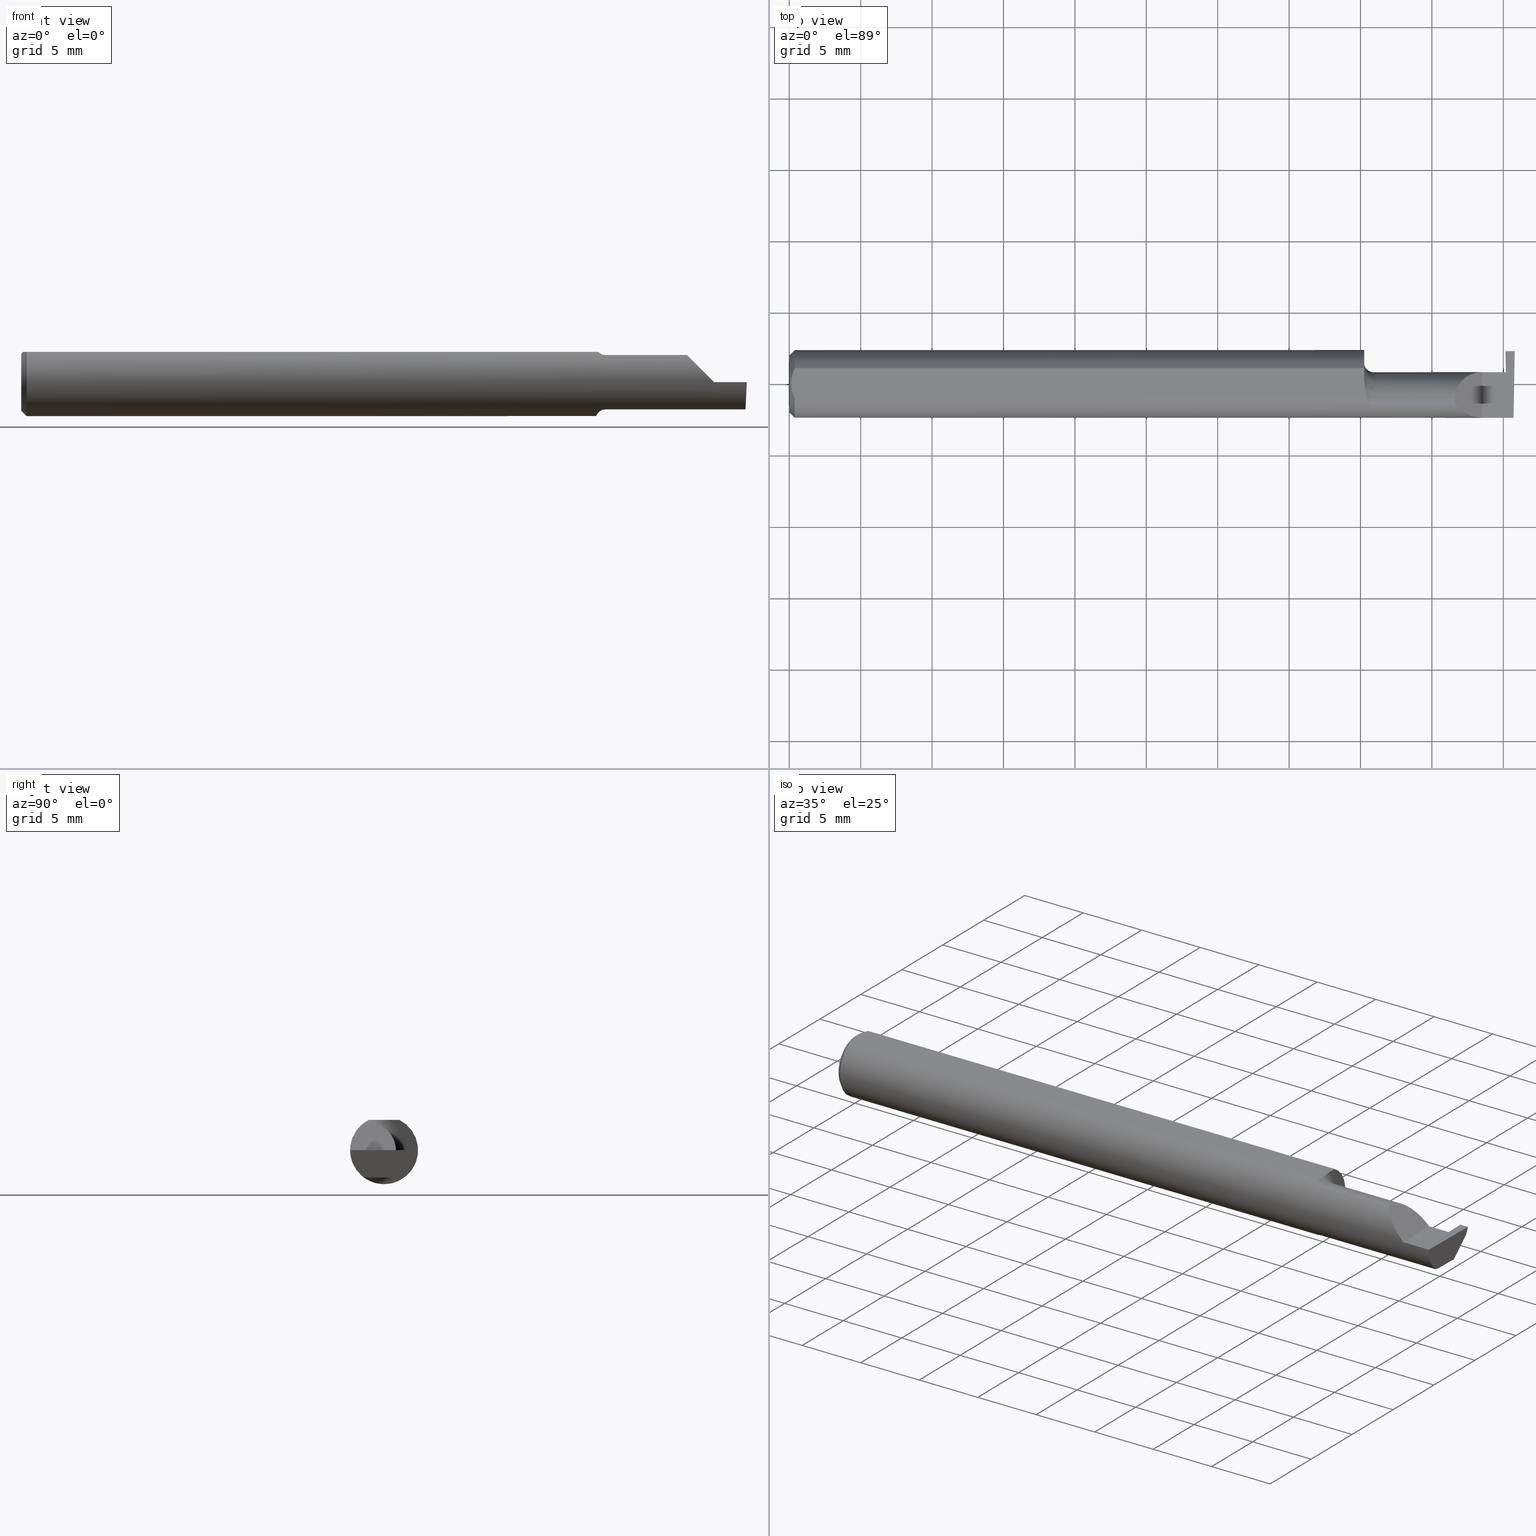
[diagram: canonical four-view strip — front | top / right | iso, engineering-drawing reading convention]
A machine part, canonical four-view strip (front | top / right | iso — engineering-drawing reading convention). The complete STEP part file that produces these views, byte-faithful:
ISO-10303-21;
HEADER;
FILE_DESCRIPTION (( 'STEP AP203' ),
    '1' );
FILE_NAME ('220659-GT025K-6.STEP',
    '2024-07-08T22:54:24',
    ( '' ),
    ( '' ),
    'SwSTEP 2.0',
    'SolidWorks 2024',
    '' );
FILE_SCHEMA (( 'CONFIG_CONTROL_DESIGN' ));
ENDSEC;

DATA;
#1 = FACE_OUTER_BOUND ( 'NONE', #619, .T. ) ;
#2 = ORIENTED_EDGE ( 'NONE', *, *, #495, .T. ) ;
#3 = CALENDAR_DATE ( 2024, 8, 7 ) ;
#4 = CARTESIAN_POINT ( 'NONE',  ( 1.591356684838558300, -0.04259999999999997122, -0.08334386600104412568 ) ) ;
#5 = CARTESIAN_POINT ( 'NONE',  ( 1.977080687037212847, 0.02094495418688679597, -0.05333678008583642161 ) ) ;
#6 = ORIENTED_EDGE ( 'NONE', *, *, #571, .T. ) ;
#7 = PERSON_AND_ORGANIZATION_ROLE ( 'creator' ) ;
#8 = AXIS2_PLACEMENT_3D ( 'NONE', #651, #465, #709 ) ;
#9 = DIRECTION ( 'NONE',  ( 0.000000000000000000, 0.000000000000000000, 1.000000000000000000 ) ) ;
#10 = LOCAL_TIME ( 15, 54, 24.00000000000000000, #476 ) ;
#11 = CARTESIAN_POINT ( 'NONE',  ( 0.000000000000000000, 0.000000000000000000, 0.000000000000000000 ) ) ;
#12 = ORIENTED_EDGE ( 'NONE', *, *, #13, .T. ) ;
#13 = EDGE_CURVE ( 'NONE', #521, #623, #548, .T. ) ;
#14 = CARTESIAN_POINT ( 'NONE',  ( 2.000000000000000000, -0.04259999999999999204, -0.07499999999999998335 ) ) ;
#15 = DIRECTION ( 'NONE',  ( 1.000000000000000000, 0.000000000000000000, 0.000000000000000000 ) ) ;
#16 = ORIENTED_EDGE ( 'NONE', *, *, #22, .T. ) ;
#17 = PLANE ( 'NONE',  #139 ) ;
#18 = CARTESIAN_POINT ( 'NONE',  ( 1.584999999999999964, -0.04259999999999998510, 0.000000000000000000 ) ) ;
#19 = PRODUCT_RELATED_PRODUCT_CATEGORY ( 'detail', '', ( #721 ) ) ;
#20 = VECTOR ( 'NONE', #314, 39.37007874015748143 ) ;
#21 = AXIS2_PLACEMENT_3D ( 'NONE', #364, #190, #424 ) ;
#22 = EDGE_CURVE ( 'NONE', #267, #262, #259, .T. ) ;
#23 = APPROVAL_PERSON_ORGANIZATION ( #600, #304, #596 ) ;
#24 = DIRECTION ( 'NONE',  ( -0.03056411404777942264, -0.3418603543644915255, -0.9392536042231929283 ) ) ;
#25 = ORIENTED_EDGE ( 'NONE', *, *, #728, .F. ) ;
#26 = EDGE_CURVE ( 'NONE', #427, #749, #684, .T. ) ;
#27 = CARTESIAN_POINT ( 'NONE',  ( 1.835000000000000409, -0.04259999999999998510, 0.07499999999999999722 ) ) ;
#28 = DIRECTION ( 'NONE',  ( -1.000000000000000000, -0.000000000000000000, -0.000000000000000000 ) ) ;
#29 = EDGE_LOOP ( 'NONE', ( #235, #99, #688, #12, #766, #704 ) ) ;
#30 = CARTESIAN_POINT ( 'NONE',  ( 1.589570820222980130, -0.02392027542784326555, 0.08360000000000000764 ) ) ;
#31 = DESIGN_CONTEXT ( 'detailed design', #310, 'design' ) ;
#32 = DIRECTION ( 'NONE',  ( 0.000000000000000000, 0.000000000000000000, 1.000000000000000000 ) ) ;
#33 = VERTEX_POINT ( 'NONE', #618 ) ;
#34 = FACE_OUTER_BOUND ( 'NONE', #575, .T. ) ;
#35 = AXIS2_PLACEMENT_3D ( 'NONE', #666, #439, #62 ) ;
#36 = CARTESIAN_POINT ( 'NONE',  ( 1.975284083932825618, -1.943777437782025386, -0.02023551779233938308 ) ) ;
#37 = ORIENTED_EDGE ( 'NONE', *, *, #728, .T. ) ;
#38 = EDGE_CURVE ( 'NONE', #534, #451, #109, .T. ) ;
#39 = CARTESIAN_POINT ( 'NONE',  ( 1.995486889784650497, -0.05810704225352112534, -0.07337936794867826185 ) ) ;
#40 = ORIENTED_EDGE ( 'NONE', *, *, #128, .F. ) ;
#41 = MECHANICAL_CONTEXT ( 'NONE', #173, 'mechanical' ) ;
#42 = CARTESIAN_POINT ( 'NONE',  ( 0.005981829149300634495, 0.01454044632356570055, 0.08359999999999997988 ) ) ;
#43 = VERTEX_POINT ( 'NONE', #320 ) ;
#44 = B_SPLINE_CURVE_WITH_KNOTS ( 'NONE', 3,
 ( #715, #348, #342, #42, #405, #408 ),
 .UNSPECIFIED., .F., .F.,
 ( 4, 2, 4 ),
 ( 0.001518921481343302573, 0.002066509374312902950, 0.002614097267282503544 ),
 .UNSPECIFIED. ) ;
#45 = B_SPLINE_CURVE_WITH_KNOTS ( 'NONE', 3,
 ( #335, #569, #30, #699, #272, #512 ),
 .UNSPECIFIED., .F., .F.,
 ( 4, 2, 4 ),
 ( 0.009672910729349781800, 0.01035804079918456987, 0.01104317086901935793 ),
 .UNSPECIFIED. ) ;
#46 = DIRECTION ( 'NONE',  ( 0.000000000000000000, -0.7071067811865487940, -0.7071067811865462405 ) ) ;
#47 = CARTESIAN_POINT ( 'NONE',  ( 0.01499999999999999944, -0.04209513035969836975, 0.08359999999999999376 ) ) ;
#48 = EDGE_CURVE ( 'NONE', #406, #508, #726, .T. ) ;
#49 = CIRCLE ( 'NONE', #327, 0.07499999999999999722 ) ;
#50 = VERTEX_POINT ( 'NONE', #256 ) ;
#51 = AXIS2_PLACEMENT_3D ( 'NONE', #52, #581, #292 ) ;
#52 = CARTESIAN_POINT ( 'NONE',  ( 0.000000000000000000, 0.000000000000000000, 0.000000000000000000 ) ) ;
#53 = EDGE_CURVE ( 'NONE', #93, #147, #95, .T. ) ;
#54 = ORIENTED_EDGE ( 'NONE', *, *, #311, .F. ) ;
#55 = LINE ( 'NONE', #585, #352 ) ;
#56 = DIRECTION ( 'NONE',  ( -0.01744642479411312799, -0.9998477995484629233, 3.463134274570152404E-16 ) ) ;
#57 = VERTEX_POINT ( 'NONE', #558 ) ;
#58 = CARTESIAN_POINT ( 'NONE',  ( 0.000000000000000000, 0.000000000000000000, 0.000000000000000000 ) ) ;
#59 = DIRECTION ( 'NONE',  ( 1.000000000000000000, -0.000000000000000000, -0.000000000000000000 ) ) ;
#60 = AXIS2_PLACEMENT_3D ( 'NONE', #675, #244, #129 ) ;
#61 = FACE_OUTER_BOUND ( 'NONE', #448, .T. ) ;
#62 = DIRECTION ( 'NONE',  ( 1.000000000000000000, 0.000000000000000000, -0.000000000000000000 ) ) ;
#63 = CARTESIAN_POINT ( 'NONE',  ( 1.605389671955115727, -0.05750350940205799927, -0.07386306649500064270 ) ) ;
#64 = CARTESIAN_POINT ( 'NONE',  ( 0.000000000000000000, 0.04209513035969836975, 0.08359999999999999376 ) ) ;
#65 = APPROVAL_DATE_TIME ( #611, #222 ) ;
#66 = CARTESIAN_POINT ( 'NONE',  ( 1.599728336617688651, -0.05428341532129050961, -0.07627162539867091140 ) ) ;
#67 = EDGE_CURVE ( 'NONE', #663, #93, #672, .T. ) ;
#68 = FACE_OUTER_BOUND ( 'NONE', #240, .T. ) ;
#69 = CIRCLE ( 'NONE', #206, 0.07499999999999999722 ) ;
#70 = CARTESIAN_POINT ( 'NONE',  ( 1.792249999999999899, -0.05810704225352112534, -0.07337936794867826185 ) ) ;
#71 = DIRECTION ( 'NONE',  ( -1.000000000000000000, -0.000000000000000000, -0.000000000000000000 ) ) ;
#72 = ORIENTED_EDGE ( 'NONE', *, *, #250, .T. ) ;
#73 = CARTESIAN_POINT ( 'NONE',  ( 1.609999999999999654, -0.05810704225352114616, 0.07337936794867824797 ) ) ;
#74 = CC_DESIGN_PERSON_AND_ORGANIZATION_ASSIGNMENT ( #368, #7, ( #733 ) ) ;
#75 = DIRECTION ( 'NONE',  ( -1.000000000000000000, -0.000000000000000000, -0.000000000000000000 ) ) ;
#76 = ORIENTED_EDGE ( 'NONE', *, *, #250, .F. ) ;
#77 = EDGE_CURVE ( 'NONE', #614, #291, #303, .T. ) ;
#78 = FACE_OUTER_BOUND ( 'NONE', #326, .T. ) ;
#79 = CARTESIAN_POINT ( 'NONE',  ( 1.607655343791670077, -0.05810704225352127106, 0.07337936794867813695 ) ) ;
#80 = ORIENTED_EDGE ( 'NONE', *, *, #714, .F. ) ;
#81 = EDGE_CURVE ( 'NONE', #116, #427, #134, .T. ) ;
#82 = DIRECTION ( 'NONE',  ( 1.000000000000000000, -0.000000000000000000, -0.000000000000000000 ) ) ;
#83 = AXIS2_PLACEMENT_3D ( 'NONE', #145, #265, #150 ) ;
#84 = LOCAL_TIME ( 15, 54, 24.00000000000000000, #312 ) ;
#85 = FACE_OUTER_BOUND ( 'NONE', #479, .T. ) ;
#86 = ORIENTED_EDGE ( 'NONE', *, *, #752, .T. ) ;
#87 = FACE_OUTER_BOUND ( 'NONE', #337, .T. ) ;
#88 = DIRECTION ( 'NONE',  ( -0.7071067811865490160, 0.000000000000000000, -0.7071067811865460184 ) ) ;
#89 = ORIENTED_EDGE ( 'NONE', *, *, #752, .F. ) ;
#90 = CARTESIAN_POINT ( 'NONE',  ( 1.836620632051322310, -0.05810704225352113922, 0.07337936794867826185 ) ) ;
#91 = PLANE ( 'NONE',  #328 ) ;
#92 = ADVANCED_FACE ( 'NONE', ( #68 ), #643, .T. ) ;
#93 = VERTEX_POINT ( 'NONE', #603 ) ;
#94 = DIRECTION ( 'NONE',  ( -0.03489418134011375294, -0.0006090802009084599154, 0.9993908270190957621 ) ) ;
#95 = CIRCLE ( 'NONE', #120, 0.07499999999999999722 ) ;
#96 = EDGE_CURVE ( 'NONE', #147, #413, #49, .T. ) ;
#97 = CARTESIAN_POINT ( 'NONE',  ( 1.910000000000000142, -0.09359999999999998876, 1.102182119232621301E-17 ) ) ;
#98 = VECTOR ( 'NONE', #473, 39.37007874015748143 ) ;
#99 = ORIENTED_EDGE ( 'NONE', *, *, #673, .T. ) ;
#100 = CARTESIAN_POINT ( 'NONE',  ( 1.899999999999999911, 0.08348456554894213844, -0.01900000000000000300 ) ) ;
#101 = FACE_OUTER_BOUND ( 'NONE', #630, .T. ) ;
#102 = ORIENTED_EDGE ( 'NONE', *, *, #571, .F. ) ;
#103 = ADVANCED_FACE ( 'NONE', ( #676 ), #130, .T. ) ;
#104 = CARTESIAN_POINT ( 'NONE',  ( 1.977956086143509484, 0.03244268712522728471, -0.07004187842361092597 ) ) ;
#105 = LINE ( 'NONE', #712, #98 ) ;
#106 = ORIENTED_EDGE ( 'NONE', *, *, #387, .F. ) ;
#107 = ADVANCED_FACE ( 'NONE', ( #373 ), #308, .T. ) ;
#108 = LINE ( 'NONE', #586, #503 ) ;
#109 =( BOUNDED_CURVE ( )  B_SPLINE_CURVE ( 3, ( #426, #248, #5, #252 ),
 .UNSPECIFIED., .F., .F. ) 
 B_SPLINE_CURVE_WITH_KNOTS ( ( 4, 4 ),
 ( 3.140983202202990654, 4.455205321888860759 ),
 .UNSPECIFIED. ) 
 CURVE ( )  GEOMETRIC_REPRESENTATION_ITEM ( )  RATIONAL_B_SPLINE_CURVE ( ( 1.000000000000000000, 0.8611734602017915297, 0.8611734602017915297, 1.000000000000000000 ) ) 
 REPRESENTATION_ITEM ( '' )  );
#110 = ORIENTED_EDGE ( 'NONE', *, *, #298, .T. ) ;
#111 = VECTOR ( 'NONE', #657, 39.37007874015748143 ) ;
#112 = CARTESIAN_POINT ( 'NONE',  ( 1.880893035518783396, -0.09359999999999998876, 0.02910696448121675300 ) ) ;
#113 = CARTESIAN_POINT ( 'NONE',  ( 0.005975039161239314132, -0.01453776427033151748, 0.08360000000000000764 ) ) ;
#114 = ORIENTED_EDGE ( 'NONE', *, *, #410, .F. ) ;
#115 = DIRECTION ( 'NONE',  ( -1.000000000000000000, -0.000000000000000000, -0.000000000000000000 ) ) ;
#116 = VERTEX_POINT ( 'NONE', #554 ) ;
#117 = B_SPLINE_CURVE_WITH_KNOTS ( 'NONE', 3,
 ( #369, #181, #63, #616, #66, #307, #539, #4 ),
 .UNSPECIFIED., .F., .F.,
 ( 4, 2, 2, 4 ),
 ( 1.968126669309311202E-07, 0.0001761966947278539039, 0.0003521965767887768836, 0.0007041963409106363411 ),
 .UNSPECIFIED. ) ;
#118 = CALENDAR_DATE ( 2024, 8, 7 ) ;
#119 = FACE_OUTER_BOUND ( 'NONE', #711, .T. ) ;
#120 = AXIS2_PLACEMENT_3D ( 'NONE', #481, #488, #421 ) ;
#121 = ORIENTED_EDGE ( 'NONE', *, *, #595, .T. ) ;
#122 = CIRCLE ( 'NONE', #564, 0.02500000000000007425 ) ;
#123 =( GEOMETRIC_REPRESENTATION_CONTEXT ( 3 ) GLOBAL_UNCERTAINTY_ASSIGNED_CONTEXT ( ( #700 ) ) GLOBAL_UNIT_ASSIGNED_CONTEXT ( ( #527, #223, #641 ) ) REPRESENTATION_CONTEXT ( 'NONE', 'WORKASPACE' ) );
#124 = CALENDAR_DATE ( 2024, 8, 7 ) ;
#125 = DIRECTION ( 'NONE',  ( -1.000000000000000000, -0.000000000000000000, -0.000000000000000000 ) ) ;
#126 = DIRECTION ( 'NONE',  ( 0.04124162102275089753, 0.0006089328293546878617, -0.9991490168619618917 ) ) ;
#127 = ORIENTED_EDGE ( 'NONE', *, *, #774, .F. ) ;
#128 = EDGE_CURVE ( 'NONE', #154, #614, #475, .T. ) ;
#129 = DIRECTION ( 'NONE',  ( 0.000000000000000000, 0.0006094513490878761220, -0.9999998142845092364 ) ) ;
#130 = PLANE ( 'NONE',  #35 ) ;
#131 = ORIENTED_EDGE ( 'NONE', *, *, #739, .T. ) ;
#132 = APPROVAL_DATE_TIME ( #195, #138 ) ;
#133 = DIRECTION ( 'NONE',  ( 0.9986309243930281410, -3.188005489064582067E-05, 0.05230942390801322089 ) ) ;
#134 = LINE ( 'NONE', #734, #695 ) ;
#135 = B_SPLINE_CURVE_WITH_KNOTS ( 'NONE', 3,
 ( #691, #213, #687, #450 ),
 .UNSPECIFIED., .F., .F.,
 ( 4, 4 ),
 ( 4.741820243502701581E-07, 1.584523690453573094E-05 ),
 .UNSPECIFIED. ) ;
#136 = ORIENTED_EDGE ( 'NONE', *, *, #96, .F. ) ;
#137 = CONICAL_SURFACE ( 'NONE', #778, 0.09359999999999998876, 0.7853981633974473908 ) ;
#138 = APPROVAL ( #783, 'UNSPECIFIED' ) ;
#139 = AXIS2_PLACEMENT_3D ( 'NONE', #627, #260, #207 ) ;
#140 = CARTESIAN_POINT ( 'NONE',  ( 1.584999999999999964, 0.03240000000000000518, 5.082284216461540301E-17 ) ) ;
#141 = VERTEX_POINT ( 'NONE', #541 ) ;
#142 = CARTESIAN_POINT ( 'NONE',  ( 1.835000000000000409, -0.04259999999999998510, 0.07499999999999999722 ) ) ;
#143 = CARTESIAN_POINT ( 'NONE',  ( 1.593098441794897902, -0.04641417426599063478, 0.08139430652501544738 ) ) ;
#144 = ORIENTED_EDGE ( 'NONE', *, *, #48, .F. ) ;
#145 = CARTESIAN_POINT ( 'NONE',  ( 2.000000000000000000, 0.05599964285600403380, -0.07500000000000002498 ) ) ;
#146 = DIRECTION ( 'NONE',  ( -7.219510806010324627E-16, 0.9999998142845092364, 0.0006094513490878470654 ) ) ;
#147 = VERTEX_POINT ( 'NONE', #494 ) ;
#148 = AXIS2_PLACEMENT_3D ( 'NONE', #36, #701, #703 ) ;
#149 = B_SPLINE_CURVE_WITH_KNOTS ( 'NONE', 3,
 ( #313, #679, #185, #316, #552, #662 ),
 .UNSPECIFIED., .F., .F.,
 ( 4, 2, 4 ),
 ( 0.0007041963409106363411, 0.001193146413573859584, 0.001682096486237082827 ),
 .UNSPECIFIED. ) ;
#150 = DIRECTION ( 'NONE',  ( 0.000000000000000000, -1.000000000000000000, 3.463308682636258767E-16 ) ) ;
#151 = AXIS2_PLACEMENT_3D ( 'NONE', #324, #566, #561 ) ;
#152 = CC_DESIGN_SECURITY_CLASSIFICATION ( #393, ( #733 ) ) ;
#153 = CARTESIAN_POINT ( 'NONE',  ( 1.591356684838558300, -0.04259999999999997816, 0.08334386600104415344 ) ) ;
#154 = VERTEX_POINT ( 'NONE', #782 ) ;
#155 = LINE ( 'NONE', #449, #487 ) ;
#156 = ADVANCED_FACE ( 'NONE', ( #119 ), #366, .T. ) ;
#157 = CARTESIAN_POINT ( 'NONE',  ( 1.595259025420518784, -0.04992838138009422083, 0.07925011723318650669 ) ) ;
#158 = ORIENTED_EDGE ( 'NONE', *, *, #524, .F. ) ;
#159 = LINE ( 'NONE', #519, #253 ) ;
#160 = CARTESIAN_POINT ( 'NONE',  ( 1.975284083932825618, -1.943777437782025386, -0.02023551779233938308 ) ) ;
#161 = ORIENTED_EDGE ( 'NONE', *, *, #96, .T. ) ;
#162 = FACE_OUTER_BOUND ( 'NONE', #716, .T. ) ;
#163 = AXIS2_PLACEMENT_3D ( 'NONE', #567, #457, #325 ) ;
#164 = CARTESIAN_POINT ( 'NONE',  ( 0.004999999999999977553, -0.007328888879231072045, 0.08359999999999997988 ) ) ;
#165 = VECTOR ( 'NONE', #573, 39.37007874015748143 ) ;
#166 = ORIENTED_EDGE ( 'NONE', *, *, #67, .F. ) ;
#167 = ADVANCED_FACE ( 'NONE', ( #218 ), #137, .T. ) ;
#168 = DIRECTION ( 'NONE',  ( 0.000000000000000000, -0.7071067811865462405, 0.7071067811865487940 ) ) ;
#169 = CARTESIAN_POINT ( 'NONE',  ( 1.609999999999999654, -0.05810704225352111146, -0.07337936794867826185 ) ) ;
#170 = ADVANCED_FACE ( 'NONE', ( #763 ), #625, .T. ) ;
#171 = ORIENTED_EDGE ( 'NONE', *, *, #38, .T. ) ;
#172 = DIRECTION ( 'NONE',  ( 0.000000000000000000, 0.000000000000000000, 1.000000000000000000 ) ) ;
#173 = APPLICATION_CONTEXT ( 'configuration controlled 3d designs of mechanical parts and assemblies' ) ;
#174 = DIRECTION ( 'NONE',  ( 0.000000000000000000, 0.000000000000000000, 1.000000000000000000 ) ) ;
#175 = VERTEX_POINT ( 'NONE', #266 ) ;
#176 = CARTESIAN_POINT ( 'NONE',  ( 1.975181069320712801, 0.08545240048792480947, -0.01703216506101733196 ) ) ;
#177 = CARTESIAN_POINT ( 'NONE',  ( 0.000000000000000000, 0.000000000000000000, 0.000000000000000000 ) ) ;
#178 = ORIENTED_EDGE ( 'NONE', *, *, #182, .F. ) ;
#179 = PERSON_AND_ORGANIZATION ( #620, #329 ) ;
#180 = PRODUCT_DEFINITION_SHAPE ( 'NONE', 'NONE',  #360 ) ;
#181 = CARTESIAN_POINT ( 'NONE',  ( 1.607653034764491506, -0.05810704225352129881, -0.07337936794867812307 ) ) ;
#182 = EDGE_CURVE ( 'NONE', #451, #427, #748, .T. ) ;
#183 = EDGE_LOOP ( 'NONE', ( #16, #514, #294, #399 ) ) ;
#184 = COORDINATED_UNIVERSAL_TIME_OFFSET ( 8, 0, .BEHIND. ) ;
#185 = CARTESIAN_POINT ( 'NONE',  ( 1.587415450430337271, -0.03151229630690470518, -0.08835846806355296401 ) ) ;
#186 = DIRECTION ( 'NONE',  ( -0.000000000000000000, 1.000000000000000000, -0.000000000000000000 ) ) ;
#187 = ORIENTED_EDGE ( 'NONE', *, *, #215, .T. ) ;
#188 = ADVANCED_BREP_SHAPE_REPRESENTATION ( '220659-GT025K-6', ( #278, #51 ), #123 ) ;
#189 = SECURITY_CLASSIFICATION_LEVEL ( 'unclassified' ) ;
#190 = DIRECTION ( 'NONE',  ( -1.000000000000000000, -0.000000000000000000, -0.000000000000000000 ) ) ;
#191 = ORIENTED_EDGE ( 'NONE', *, *, #610, .F. ) ;
#192 = CIRCLE ( 'NONE', #290, 0.02500000000000007425 ) ;
#193 = ADVANCED_FACE ( 'NONE', ( #85 ), #391, .F. ) ;
#194 = LOCAL_TIME ( 15, 54, 24.00000000000000000, #300 ) ;
#195 = DATE_AND_TIME ( #723, #671 ) ;
#196 = CARTESIAN_POINT ( 'NONE',  ( 1.584999999999999964, -0.04259999999999997816, -0.07499999999999999722 ) ) ;
#197 = CARTESIAN_POINT ( 'NONE',  ( 0.01499999999999999944, 0.000000000000000000, 0.000000000000000000 ) ) ;
#198 = ADVANCED_FACE ( 'NONE', ( #220 ), #442, .F. ) ;
#199 = ORIENTED_EDGE ( 'NONE', *, *, #353, .T. ) ;
#200 = DATE_AND_TIME ( #3, #555 ) ;
#201 = PLANE ( 'NONE',  #60 ) ;
#202 = CARTESIAN_POINT ( 'NONE',  ( 1.609999999999999654, -0.04259999999999998510, 0.000000000000000000 ) ) ;
#203 = ORIENTED_EDGE ( 'NONE', *, *, #725, .F. ) ;
#204 = CARTESIAN_POINT ( 'NONE',  ( 1.591129652885479029, -0.04209513035970094408, 0.08359999999999999376 ) ) ;
#205 = DIRECTION ( 'NONE',  ( -1.000000000000000000, -0.000000000000000000, -0.000000000000000000 ) ) ;
#206 = AXIS2_PLACEMENT_3D ( 'NONE', #246, #429, #665 ) ;
#207 = DIRECTION ( 'NONE',  ( 0.03490478697967554916, 0.000000000000000000, -0.9993906422645267851 ) ) ;
#208 = CARTESIAN_POINT ( 'NONE',  ( 1.584999999999999964, -0.04259999999999998510, 0.000000000000000000 ) ) ;
#209 = EDGE_LOOP ( 'NONE', ( #565, #634, #178 ) ) ;
#210 = CARTESIAN_POINT ( 'NONE',  ( 1.835000000000000187, 0.001333982822017879596, 0.07499999999999998335 ) ) ;
#211 = VERTEX_POINT ( 'NONE', #622 ) ;
#212 = CARTESIAN_POINT ( 'NONE',  ( 1.899999999999999911, 0.09040000000000000813, -3.918869757271545852E-19 ) ) ;
#213 = CARTESIAN_POINT ( 'NONE',  ( 1.591204482410373933, -0.04226411763296330365, 0.08351490979309549034 ) ) ;
#214 = ORIENTED_EDGE ( 'NONE', *, *, #247, .F. ) ;
#215 = EDGE_CURVE ( 'NONE', #57, #599, #776, .T. ) ;
#216 = DIRECTION ( 'NONE',  ( 0.000000000000000000, -0.3420201433256696566, -0.9396926207859079838 ) ) ;
#217 = AXIS2_PLACEMENT_3D ( 'NONE', #576, #472, #172 ) ;
#218 = FACE_OUTER_BOUND ( 'NONE', #685, .T. ) ;
#219 = ORIENTED_EDGE ( 'NONE', *, *, #491, .T. ) ;
#220 = FACE_OUTER_BOUND ( 'NONE', #777, .T. ) ;
#221 = ORIENTED_EDGE ( 'NONE', *, *, #295, .F. ) ;
#222 = APPROVAL ( #780, 'UNSPECIFIED' ) ;
#223 =( NAMED_UNIT ( * ) PLANE_ANGLE_UNIT ( ) SI_UNIT ( $, .RADIAN. ) );
#224 = DIRECTION ( 'NONE',  ( 3.192376091677297614E-05, 0.9999999994904366085, -3.463312784668718215E-16 ) ) ;
#225 = ORIENTED_EDGE ( 'NONE', *, *, #739, .F. ) ;
#226 = CARTESIAN_POINT ( 'NONE',  ( 1.910000000000000142, -0.09359999999999998876, 1.102182119232621301E-17 ) ) ;
#227 = VECTOR ( 'NONE', #146, 39.37007874015748854 ) ;
#228 = CARTESIAN_POINT ( 'NONE',  ( 1.995547692684114249, -0.05300374992736063551, -0.07445783144524571739 ) ) ;
#229 = AXIS2_PLACEMENT_3D ( 'NONE', #58, #781, #602 ) ;
#230 = ORIENTED_EDGE ( 'NONE', *, *, #356, .F. ) ;
#231 = CARTESIAN_POINT ( 'NONE',  ( 1.591356684838558300, -0.04259999999999997122, -0.08334386600104412568 ) ) ;
#232 = ORIENTED_EDGE ( 'NONE', *, *, #667, .F. ) ;
#233 = CARTESIAN_POINT ( 'NONE',  ( 1.975284083932824064, 0.08348456554894213844, -0.01899999999999999606 ) ) ;
#234 = LINE ( 'NONE', #286, #769 ) ;
#235 = ORIENTED_EDGE ( 'NONE', *, *, #774, .T. ) ;
#236 = ADVANCED_FACE ( 'NONE', ( #513 ), #759, .F. ) ;
#237 = DATE_AND_TIME ( #668, #84 ) ;
#238 = AXIS2_PLACEMENT_3D ( 'NONE', #208, #261, #339 ) ;
#239 = LINE ( 'NONE', #706, #526 ) ;
#240 = EDGE_LOOP ( 'NONE', ( #40, #396, #609, #418, #367 ) ) ;
#241 = VECTOR ( 'NONE', #403, 39.37007874015748854 ) ;
#242 = EDGE_CURVE ( 'NONE', #451, #116, #735, .T. ) ;
#243 = APPROVAL_ROLE ( '' ) ;
#244 = DIRECTION ( 'NONE',  ( -1.322828972456980386E-16, -0.9999998142845093474, -0.0006094513490878762305 ) ) ;
#245 = DIRECTION ( 'NONE',  ( -1.000000000000000000, -0.000000000000000000, -0.000000000000000000 ) ) ;
#246 = CARTESIAN_POINT ( 'NONE',  ( 1.974499999999999922, -0.04259999999999998510, 0.000000000000000000 ) ) ;
#247 = EDGE_CURVE ( 'NONE', #614, #154, #601, .T. ) ;
#248 = CARTESIAN_POINT ( 'NONE',  ( 1.978214534726833840, -0.007134900077140376128, -0.07499999999999999722 ) ) ;
#249 = EDGE_LOOP ( 'NONE', ( #511, #219, #654, #531, #72, #121, #374 ) ) ;
#250 = EDGE_CURVE ( 'NONE', #604, #57, #135, .T. ) ;
#251 = CARTESIAN_POINT ( 'NONE',  ( 1.609999999999999654, -0.04259999999999997816, 0.000000000000000000 ) ) ;
#252 = CARTESIAN_POINT ( 'NONE',  ( 1.975284083932824064, 0.02994487577554239693, -0.01903262984222201318 ) ) ;
#253 = VECTOR ( 'NONE', #705, 39.37007874015748143 ) ;
#254 = PERSON_AND_ORGANIZATION_ROLE ( 'classification_officer' ) ;
#255 = FACE_OUTER_BOUND ( 'NONE', #761, .T. ) ;
#256 = CARTESIAN_POINT ( 'NONE',  ( 1.975510542377208578, 0.03240000000000000518, 1.499546794530320351E-18 ) ) ;
#257 = ORIENTED_EDGE ( 'NONE', *, *, #491, .F. ) ;
#258 = DIRECTION ( 'NONE',  ( -0.000000000000000000, 1.000000000000000000, 1.224646799147353207E-16 ) ) ;
#259 = LINE ( 'NONE', #680, #276 ) ;
#260 = DIRECTION ( 'NONE',  ( 0.9992391710281357531, 0.01740988840156643819, 0.03489949668475364475 ) ) ;
#261 = DIRECTION ( 'NONE',  ( -1.000000000000000000, -0.000000000000000000, -0.000000000000000000 ) ) ;
#262 = VERTEX_POINT ( 'NONE', #696 ) ;
#263 = TOROIDAL_SURFACE ( 'NONE', #747, 0.09999999999999999167, 0.02500000000000007425 ) ;
#264 = CC_DESIGN_APPROVAL ( #304, ( #393 ) ) ;
#265 = DIRECTION ( 'NONE',  ( -0.000000000000000000, 3.463308682636258767E-16, 1.000000000000000000 ) ) ;
#266 = CARTESIAN_POINT ( 'NONE',  ( 1.836620632051322310, -0.05810704225352113922, 0.07337936794867826185 ) ) ;
#267 = VERTEX_POINT ( 'NONE', #323 ) ;
#268 = CARTESIAN_POINT ( 'NONE',  ( 1.835542168554754827, -0.05300374992736064245, 0.07445783144524570352 ) ) ;
#269 = CARTESIAN_POINT ( 'NONE',  ( 1.599746577633803568, -0.05429945193459817521, 0.07626038032150797563 ) ) ;
#270 = EDGE_CURVE ( 'NONE', #262, #681, #638, .T. ) ;
#271 = ORIENTED_EDGE ( 'NONE', *, *, #693, .T. ) ;
#272 = CARTESIAN_POINT ( 'NONE',  ( 1.584999999999999520, 0.003280657920457031966, 0.08359999999999999376 ) ) ;
#273 = ADVANCED_FACE ( 'NONE', ( #395 ), #91, .F. ) ;
#274 = CARTESIAN_POINT ( 'NONE',  ( 1.975027797685394937, 0.03157410243558826657, -0.01282266061343004249 ) ) ;
#275 = ORIENTED_EDGE ( 'NONE', *, *, #456, .T. ) ;
#276 = VECTOR ( 'NONE', #59, 39.37007874015748143 ) ;
#277 = PLANE ( 'NONE',  #83 ) ;
#278 = MANIFOLD_SOLID_BREP ( 'Front Angle', #438 ) ;
#279 = CC_DESIGN_PERSON_AND_ORGANIZATION_ASSIGNMENT ( #542, #678, ( #733 ) ) ;
#280 = ORIENTED_EDGE ( 'NONE', *, *, #606, .F. ) ;
#281 = APPLICATION_PROTOCOL_DEFINITION ( 'international standard', 'config_control_design', 1994, #173 ) ;
#282 = DIRECTION ( 'NONE',  ( 1.000000000000000000, 0.000000000000000000, 0.000000000000000000 ) ) ;
#283 = ORIENTED_EDGE ( 'NONE', *, *, #26, .F. ) ;
#284 =( BOUNDED_CURVE ( )  B_SPLINE_CURVE ( 3, ( #522, #772, #460, #407 ),
 .UNSPECIFIED., .F., .F. ) 
 B_SPLINE_CURVE_WITH_KNOTS ( ( 4, 4 ),
 ( 0.08204942185700578317, 0.9826237902196912621 ),
 .UNSPECIFIED. ) 
 CURVE ( )  GEOMETRIC_REPRESENTATION_ITEM ( )  RATIONAL_B_SPLINE_CURVE ( ( 1.000000000000000000, 0.9335481000009943076, 0.9335481000009943076, 1.000000000000000000 ) ) 
 REPRESENTATION_ITEM ( '' )  );
#285 = CARTESIAN_POINT ( 'NONE',  ( 1.854690286057537829, -0.08092595952420826577, 0.05530971394246238237 ) ) ;
#286 = CARTESIAN_POINT ( 'NONE',  ( 1.978216550241089333, 0.05600033826564643213, -0.07500000000000002498 ) ) ;
#287 = ORIENTED_EDGE ( 'NONE', *, *, #321, .F. ) ;
#288 = LINE ( 'NONE', #344, #318 ) ;
#289 = DIRECTION ( 'NONE',  ( 1.000000000000000000, 0.000000000000000000, 0.000000000000000000 ) ) ;
#290 = AXIS2_PLACEMENT_3D ( 'NONE', #381, #453, #686 ) ;
#291 = VERTEX_POINT ( 'NONE', #574 ) ;
#292 = DIRECTION ( 'NONE',  ( 1.000000000000000000, 0.000000000000000000, 0.000000000000000000 ) ) ;
#293 = CARTESIAN_POINT ( 'NONE',  ( 1.792249999999999899, -0.05810704225352112534, 0.07337936794867826185 ) ) ;
#294 = ORIENTED_EDGE ( 'NONE', *, *, #636, .F. ) ;
#295 = EDGE_CURVE ( 'NONE', #647, #521, #404, .T. ) ;
#296 = SHAPE_DEFINITION_REPRESENTATION ( #180, #188 ) ;
#297 = CARTESIAN_POINT ( 'NONE',  ( 0.01499999999999999944, -0.04209513035969836975, 0.08359999999999999376 ) ) ;
#298 = EDGE_CURVE ( 'NONE', #349, #626, #710, .T. ) ;
#299 = ORIENTED_EDGE ( 'NONE', *, *, #436, .F. ) ;
#300 = COORDINATED_UNIVERSAL_TIME_OFFSET ( 8, 0, .BEHIND. ) ;
#301 = AXIS2_PLACEMENT_3D ( 'NONE', #197, #15, #430 ) ;
#302 = DIRECTION ( 'NONE',  ( -1.000000000000000000, -0.000000000000000000, -0.000000000000000000 ) ) ;
#303 = LINE ( 'NONE', #370, #717 ) ;
#304 = APPROVAL ( #664, 'UNSPECIFIED' ) ;
#305 = AXIS2_PLACEMENT_3D ( 'NONE', #177, #289, #577 ) ;
#306 = EDGE_CURVE ( 'NONE', #626, #431, #523, .T. ) ;
#307 = CARTESIAN_POINT ( 'NONE',  ( 1.595264545693809044, -0.04993027844100268037, -0.07924826417278514612 ) ) ;
#308 = PLANE ( 'NONE',  #350 ) ;
#309 = ORIENTED_EDGE ( 'NONE', *, *, #410, .T. ) ;
#310 = APPLICATION_CONTEXT ( 'configuration controlled 3d designs of mechanical parts and assemblies' ) ;
#311 = EDGE_CURVE ( 'NONE', #599, #175, #477, .T. ) ;
#312 = COORDINATED_UNIVERSAL_TIME_OFFSET ( 8, 0, .BEHIND. ) ;
#313 = CARTESIAN_POINT ( 'NONE',  ( 1.591356684838558300, -0.04259999999999997122, -0.08334386600104412568 ) ) ;
#314 = DIRECTION ( 'NONE',  ( 0.05230943362268535013, 0.0006086169641121966277, -0.9986307389317959915 ) ) ;
#315 = ORIENTED_EDGE ( 'NONE', *, *, #247, .T. ) ;
#316 = CARTESIAN_POINT ( 'NONE',  ( 1.585436655799338901, -0.01945041057485635827, -0.09177104786119411051 ) ) ;
#317 = DIRECTION ( 'NONE',  ( 1.000000000000000000, 0.000000000000000000, 0.000000000000000000 ) ) ;
#318 = VECTOR ( 'NONE', #411, 39.37007874015748143 ) ;
#319 = LINE ( 'NONE', #14, #478 ) ;
#320 = CARTESIAN_POINT ( 'NONE',  ( 1.995486889784650497, -0.05810704225352112534, -0.07337936794867826185 ) ) ;
#321 = EDGE_CURVE ( 'NONE', #211, #343, #635, .T. ) ;
#322 = LINE ( 'NONE', #394, #165 ) ;
#323 = CARTESIAN_POINT ( 'NONE',  ( 1.974499999999999922, 0.09040000000000000813, -3.918869757271545852E-19 ) ) ;
#324 = CARTESIAN_POINT ( 'NONE',  ( 1.584999999999999964, -0.04259999999999998510, 0.000000000000000000 ) ) ;
#325 = DIRECTION ( 'NONE',  ( 0.02618093032612054533, 0.000000000000000000, 0.9996572206948034500 ) ) ;
#326 = EDGE_LOOP ( 'NONE', ( #594, #275, #462, #166, #416, #6, #587, #537 ) ) ;
#327 = AXIS2_PLACEMENT_3D ( 'NONE', #202, #608, #378 ) ;
#328 = AXIS2_PLACEMENT_3D ( 'NONE', #633, #88, #336 ) ;
#329 = ORGANIZATION ( 'UNSPECIFIED', 'UNSPECIFIED', '' ) ;
#330 = CYLINDRICAL_SURFACE ( 'NONE', #151, 0.07499999999999999722 ) ;
#331 = EDGE_CURVE ( 'NONE', #623, #211, #44, .T. ) ;
#332 = CARTESIAN_POINT ( 'NONE',  ( 1.609999999999999654, -0.05810704225352114616, 0.07337936794867824797 ) ) ;
#333 = ORIENTED_EDGE ( 'NONE', *, *, #446, .T. ) ;
#334 = EDGE_CURVE ( 'NONE', #141, #521, #108, .T. ) ;
#335 = CARTESIAN_POINT ( 'NONE',  ( 1.591129652885479029, -0.04209513035970094408, 0.08359999999999999376 ) ) ;
#336 = DIRECTION ( 'NONE',  ( -0.7071067811865460184, 0.000000000000000000, 0.7071067811865490160 ) ) ;
#337 = EDGE_LOOP ( 'NONE', ( #230, #757, #131, #496 ) ) ;
#338 = DIRECTION ( 'NONE',  ( -1.224646799147358877E-16, 0.000000000000000000, -1.000000000000000000 ) ) ;
#339 = DIRECTION ( 'NONE',  ( 0.000000000000000000, 0.000000000000000000, 1.000000000000000000 ) ) ;
#340 = VERTEX_POINT ( 'NONE', #770 ) ;
#341 = AXIS2_PLACEMENT_3D ( 'NONE', #690, #338, #441 ) ;
#342 = CARTESIAN_POINT ( 'NONE',  ( 0.009492654797564227878, 0.02859466010166631170, 0.08360000000000000764 ) ) ;
#343 = VERTEX_POINT ( 'NONE', #47 ) ;
#344 = CARTESIAN_POINT ( 'NONE',  ( 0.000000000000000000, -0.04209513035969836975, 0.08359999999999999376 ) ) ;
#345 = PLANE ( 'NONE',  #305 ) ;
#346 = VERTEX_POINT ( 'NONE', #536 ) ;
#347 = PLANE ( 'NONE',  #655 ) ;
#348 = CARTESIAN_POINT ( 'NONE',  ( 0.01203648650249644972, 0.03550565407121128447, 0.08359999999999997988 ) ) ;
#349 = VERTEX_POINT ( 'NONE', #530 ) ;
#350 = AXIS2_PLACEMENT_3D ( 'NONE', #613, #317, #544 ) ;
#351 = LINE ( 'NONE', #461, #683 ) ;
#352 = VECTOR ( 'NONE', #94, 39.37007874015748854 ) ;
#353 = EDGE_CURVE ( 'NONE', #43, #431, #484, .T. ) ;
#354 = VERTEX_POINT ( 'NONE', #231 ) ;
#355 = CARTESIAN_POINT ( 'NONE',  ( 1.836620632051322310, -0.05810704225352113922, 0.07337936794867826185 ) ) ;
#356 = EDGE_CURVE ( 'NONE', #753, #267, #239, .T. ) ;
#357 = CARTESIAN_POINT ( 'NONE',  ( 1.997436282896842386, 0.05604437736224970185, -0.07500000000000002498 ) ) ;
#358 = ORIENTED_EDGE ( 'NONE', *, *, #528, .T. ) ;
#359 = PERSON_AND_ORGANIZATION ( #620, #329 ) ;
#360 = PRODUCT_DEFINITION ( 'UNKNOWN', '', #733, #31 ) ;
#361 = PLANE ( 'NONE',  #379 ) ;
#362 = ORIENTED_EDGE ( 'NONE', *, *, #470, .T. ) ;
#363 = VECTOR ( 'NONE', #245, 39.37007874015748143 ) ;
#364 = CARTESIAN_POINT ( 'NONE',  ( 1.584999999999999520, -0.04259999999999998510, 0.000000000000000000 ) ) ;
#365 = VECTOR ( 'NONE', #24, 39.37007874015748854 ) ;
#366 = CYLINDRICAL_SURFACE ( 'NONE', #238, 0.07499999999999999722 ) ;
#367 = ORIENTED_EDGE ( 'NONE', *, *, #77, .F. ) ;
#368 = PERSON_AND_ORGANIZATION ( #620, #329 ) ;
#369 = CARTESIAN_POINT ( 'NONE',  ( 1.609999999999999654, -0.05810704225352111146, -0.07337936794867826185 ) ) ;
#370 = CARTESIAN_POINT ( 'NONE',  ( 0.01499999999999999944, 0.000000000000000000, -0.09359999999999998876 ) ) ;
#371 = ORIENTED_EDGE ( 'NONE', *, *, #446, .F. ) ;
#372 = DIRECTION ( 'NONE',  ( 0.000000000000000000, 0.000000000000000000, 1.000000000000000000 ) ) ;
#373 = FACE_OUTER_BOUND ( 'NONE', #390, .T. ) ;
#374 = ORIENTED_EDGE ( 'NONE', *, *, #53, .T. ) ;
#375 = COORDINATED_UNIVERSAL_TIME_OFFSET ( 8, 0, .BEHIND. ) ;
#376 = DIRECTION ( 'NONE',  ( -0.03699114979479412729, 0.7066228325057373194, 0.7066228325057346549 ) ) ;
#377 = EDGE_CURVE ( 'NONE', #623, #291, #617, .T. ) ;
#378 = DIRECTION ( 'NONE',  ( 0.000000000000000000, 0.000000000000000000, 1.000000000000000000 ) ) ;
#379 = AXIS2_PLACEMENT_3D ( 'NONE', #486, #133, #420 ) ;
#380 = ADVANCED_FACE ( 'NONE', ( #101 ), #345, .F. ) ;
#381 = CARTESIAN_POINT ( 'NONE',  ( 1.609999999999999654, -0.04259999999999997816, 0.09999999999999999167 ) ) ;
#382 = DIRECTION ( 'NONE',  ( 0.000000000000000000, 0.000000000000000000, 1.000000000000000000 ) ) ;
#383 = CARTESIAN_POINT ( 'NONE',  ( 1.899999999999999911, 0.08348456554894213844, -0.01900000000000000300 ) ) ;
#384 = CC_DESIGN_PERSON_AND_ORGANIZATION_ASSIGNMENT ( #359, #550, ( #721 ) ) ;
#385 = CARTESIAN_POINT ( 'NONE',  ( 1.999906583493247902, 0.08935513411407894346, -0.002870745427926570548 ) ) ;
#386 = EDGE_LOOP ( 'NONE', ( #644, #490, #698, #358, #136 ) ) ;
#387 = EDGE_CURVE ( 'NONE', #346, #262, #582, .T. ) ;
#388 = CARTESIAN_POINT ( 'NONE',  ( 1.866066017177982594, 0.03240000000000000518, 0.04393398282201787380 ) ) ;
#389 = CARTESIAN_POINT ( 'NONE',  ( 1.974499999999999922, 0.03239999167003452391, -3.534818988851093574E-05 ) ) ;
#390 = EDGE_LOOP ( 'NONE', ( #583, #525, #422 ) ) ;
#391 = TOROIDAL_SURFACE ( 'NONE', #501, 0.09999999999999999167, 0.02500000000000007425 ) ;
#392 = AXIS2_PLACEMENT_3D ( 'NONE', #724, #302, #546 ) ;
#393 = SECURITY_CLASSIFICATION ( '', '', #189 ) ;
#394 = CARTESIAN_POINT ( 'NONE',  ( 2.999519565323743132E-32, -0.09359999999999998876, 2.449293598294717754E-16 ) ) ;
#395 = FACE_OUTER_BOUND ( 'NONE', #434, .T. ) ;
#396 = ORIENTED_EDGE ( 'NONE', *, *, #436, .T. ) ;
#397 = LINE ( 'NONE', #176, #588 ) ;
#398 = CARTESIAN_POINT ( 'NONE',  ( 1.974765001967077938, 0.03239696580267939496, -0.006455479666460864005 ) ) ;
#399 = ORIENTED_EDGE ( 'NONE', *, *, #356, .T. ) ;
#400 = DIRECTION ( 'NONE',  ( 0.01744642479411313840, 0.9998477995484629233, -2.135106780035502721E-18 ) ) ;
#401 = ORIENTED_EDGE ( 'NONE', *, *, #67, .T. ) ;
#402 = CIRCLE ( 'NONE', #392, 0.09359999999999998876 ) ;
#403 = DIRECTION ( 'NONE',  ( -0.03084274406794414863, -0.7067703747110382073, -0.7067703747110356538 ) ) ;
#404 = CIRCLE ( 'NONE', #645, 0.09359999999999998876 ) ;
#405 = CARTESIAN_POINT ( 'NONE',  ( 0.004999999999999975818, 0.007308422719211830898, 0.08359999999999999376 ) ) ;
#406 = VERTEX_POINT ( 'NONE', #97 ) ;
#407 = CARTESIAN_POINT ( 'NONE',  ( 1.996788249052547481, -0.09359999022555406945, -4.277588313357508156E-05 ) ) ;
#408 = CARTESIAN_POINT ( 'NONE',  ( 0.004999999999999986226, 1.025183015402604432E-17, 0.08359999999999999376 ) ) ;
#409 = ORIENTED_EDGE ( 'NONE', *, *, #547, .T. ) ;
#410 = EDGE_CURVE ( 'NONE', #534, #349, #234, .T. ) ;
#411 = DIRECTION ( 'NONE',  ( 1.000000000000000000, 0.000000000000000000, 0.000000000000000000 ) ) ;
#412 = CARTESIAN_POINT ( 'NONE',  ( 0.009539353699420717939, -0.02875682547511376405, 0.08359999999999997988 ) ) ;
#413 = VERTEX_POINT ( 'NONE', #169 ) ;
#414 =( BOUNDED_CURVE ( )  B_SPLINE_CURVE ( 3, ( #90, #268, #509, #754 ),
 .UNSPECIFIED., .F., .F. ) 
 B_SPLINE_CURVE_WITH_KNOTS ( ( 4, 4 ),
 ( 6.074922494366329140, 6.283185307179586232 ),
 .UNSPECIFIED. ) 
 CURVE ( )  GEOMETRIC_REPRESENTATION_ITEM ( )  RATIONAL_B_SPLINE_CURVE ( ( 1.000000000000000000, 0.9963888149483995926, 0.9963888149483995926, 1.000000000000000000 ) ) 
 REPRESENTATION_ITEM ( '' )  );
#415 = CARTESIAN_POINT ( 'NONE',  ( 0.01499999999999999944, 0.000000000000000000, 0.000000000000000000 ) ) ;
#416 = ORIENTED_EDGE ( 'NONE', *, *, #610, .T. ) ;
#417 = DIRECTION ( 'NONE',  ( -1.000000000000000000, -0.000000000000000000, -0.000000000000000000 ) ) ;
#418 = ORIENTED_EDGE ( 'NONE', *, *, #377, .T. ) ;
#419 = DATE_TIME_ROLE ( 'classification_date' ) ;
#420 = DIRECTION ( 'NONE',  ( 0.05230942393459524914, 0.000000000000000000, -0.9986309249005013156 ) ) ;
#421 = DIRECTION ( 'NONE',  ( 0.000000000000000000, 0.000000000000000000, 1.000000000000000000 ) ) ;
#422 = ORIENTED_EDGE ( 'NONE', *, *, #459, .T. ) ;
#423 = PERSON_AND_ORGANIZATION ( #620, #329 ) ;
#424 = DIRECTION ( 'NONE',  ( 0.000000000000000000, 0.000000000000000000, 1.000000000000000000 ) ) ;
#425 = VECTOR ( 'NONE', #445, 39.37007874015748143 ) ;
#426 = CARTESIAN_POINT ( 'NONE',  ( 1.978213402547462474, -0.04260000000000001286, -0.07499999999999998335 ) ) ;
#427 = VERTEX_POINT ( 'NONE', #469 ) ;
#428 = APPLICATION_PROTOCOL_DEFINITION ( 'international standard', 'config_control_design', 1994, #310 ) ;
#429 = DIRECTION ( 'NONE',  ( -1.000000000000000000, -0.000000000000000000, -0.000000000000000000 ) ) ;
#430 = DIRECTION ( 'NONE',  ( 0.000000000000000000, 0.000000000000000000, -1.000000000000000000 ) ) ;
#431 = VERTEX_POINT ( 'NONE', #649 ) ;
#432 = EDGE_CURVE ( 'NONE', #267, #50, #105, .T. ) ;
#433 = CARTESIAN_POINT ( 'NONE',  ( 1.975284083932824064, 0.02994487577554239693, -0.01903262984222201318 ) ) ;
#434 = EDGE_LOOP ( 'NONE', ( #591, #722, #568, #191 ) ) ;
#435 = ORIENTED_EDGE ( 'NONE', *, *, #26, .T. ) ;
#436 = EDGE_CURVE ( 'NONE', #154, #211, #351, .T. ) ;
#437 = CARTESIAN_POINT ( 'NONE',  ( 0.000000000000000000, 0.000000000000000000, -0.07860000000000001708 ) ) ;
#438 = CLOSED_SHELL ( 'NONE', ( #658, #156, #193, #743, #92, #518, #103, #580, #273, #167, #380, #443, #107, #170, #584, #755, #598, #551, #632, #515, #236, #198 ) ) ;
#439 = DIRECTION ( 'NONE',  ( 0.000000000000000000, -0.000000000000000000, 1.000000000000000000 ) ) ;
#440 = CC_DESIGN_DATE_AND_TIME_ASSIGNMENT ( #200, #419, ( #393 ) ) ;
#441 = DIRECTION ( 'NONE',  ( -1.000000000000000000, 0.000000000000000000, 1.224646799147358877E-16 ) ) ;
#442 = PLANE ( 'NONE',  #163 ) ;
#443 = ADVANCED_FACE ( 'NONE', ( #61 ), #263, .F. ) ;
#444 = ORIENTED_EDGE ( 'NONE', *, *, #387, .T. ) ;
#445 = DIRECTION ( 'NONE',  ( 1.000000000000000000, 0.000000000000000000, 0.000000000000000000 ) ) ;
#446 = EDGE_CURVE ( 'NONE', #349, #749, #497, .T. ) ;
#447 = CARTESIAN_POINT ( 'NONE',  ( 0.000000000000000000, 0.000000000000000000, 0.000000000000000000 ) ) ;
#448 = EDGE_LOOP ( 'NONE', ( #549, #187, #86 ) ) ;
#449 = CARTESIAN_POINT ( 'NONE',  ( 1.994172072281005459, -0.09355431490906530867, -0.09996576130738767108 ) ) ;
#450 = CARTESIAN_POINT ( 'NONE',  ( 1.591356684838558300, -0.04259999999999997816, 0.08334386600104415344 ) ) ;
#451 = VERTEX_POINT ( 'NONE', #433 ) ;
#452 = CIRCLE ( 'NONE', #217, 0.07499999999999999722 ) ;
#453 = DIRECTION ( 'NONE',  ( 0.000000000000000000, -1.000000000000000000, 0.000000000000000000 ) ) ;
#454 = CARTESIAN_POINT ( 'NONE',  ( 0.01499999999999999944, 0.000000000000000000, 0.000000000000000000 ) ) ;
#455 = ORIENTED_EDGE ( 'NONE', *, *, #468, .F. ) ;
#456 = EDGE_CURVE ( 'NONE', #534, #147, #492, .T. ) ;
#457 = DIRECTION ( 'NONE',  ( -0.9995051766793262571, 0.01744044634007060196, 0.02617694830739122208 ) ) ;
#458 = ORIENTED_EDGE ( 'NONE', *, *, #182, .T. ) ;
#459 = EDGE_CURVE ( 'NONE', #141, #647, #746, .T. ) ;
#460 = CARTESIAN_POINT ( 'NONE',  ( 1.996026586675631709, -0.09358669535931163352, -0.02913391928411206838 ) ) ;
#461 = CARTESIAN_POINT ( 'NONE',  ( 0.01499999999999999944, 1.146269404001922621E-17, 0.09359999999999998876 ) ) ;
#462 = ORIENTED_EDGE ( 'NONE', *, *, #53, .F. ) ;
#463 = VECTOR ( 'NONE', #186, 39.37007874015748143 ) ;
#464 = AXIS2_PLACEMENT_3D ( 'NONE', #415, #642, #174 ) ;
#465 = DIRECTION ( 'NONE',  ( -1.000000000000000000, -0.000000000000000000, -0.000000000000000000 ) ) ;
#466 = CARTESIAN_POINT ( 'NONE',  ( 1.996678706298551820, -0.09994204647866641866, 4.067411700506801675E-19 ) ) ;
#467 = ORIENTED_EDGE ( 'NONE', *, *, #22, .F. ) ;
#468 = EDGE_CURVE ( 'NONE', #291, #343, #402, .T. ) ;
#469 = CARTESIAN_POINT ( 'NONE',  ( 1.975284083932824064, 0.03241159854787072081, -0.01903112649442140550 ) ) ;
#470 = EDGE_CURVE ( 'NONE', #413, #354, #117, .T. ) ;
#471 = ORIENTED_EDGE ( 'NONE', *, *, #661, .T. ) ;
#472 = DIRECTION ( 'NONE',  ( -1.000000000000000000, -0.000000000000000000, -0.000000000000000000 ) ) ;
#473 = DIRECTION ( 'NONE',  ( 0.01742050049977392559, -0.9998482515673753346, -2.130797594924498551E-18 ) ) ;
#474 = ORIENTED_EDGE ( 'NONE', *, *, #432, .T. ) ;
#475 = CIRCLE ( 'NONE', #744, 0.07860000000000001708 ) ;
#476 = COORDINATED_UNIVERSAL_TIME_OFFSET ( 8, 0, .BEHIND. ) ;
#477 = LINE ( 'NONE', #293, #111 ) ;
#478 = VECTOR ( 'NONE', #125, 39.37007874015748143 ) ;
#479 = EDGE_LOOP ( 'NONE', ( #362, #2, #161 ) ) ;
#480 = LINE ( 'NONE', #140, #425 ) ;
#481 = CARTESIAN_POINT ( 'NONE',  ( 1.609999999999999654, -0.04259999999999998510, 0.000000000000000000 ) ) ;
#482 = CYLINDRICAL_SURFACE ( 'NONE', #229, 0.09359999999999998876 ) ;
#483 = CARTESIAN_POINT ( 'NONE',  ( 1.910000000000000142, -0.1000000000000000056, 1.102182119232621301E-17 ) ) ;
#484 =( BOUNDED_CURVE ( )  B_SPLINE_CURVE ( 3, ( #39, #228, #720, #773 ),
 .UNSPECIFIED., .F., .T. ) 
 B_SPLINE_CURVE_WITH_KNOTS ( ( 4, 4 ),
 ( 0.3794527164476041992, 0.5877155292608622350 ),
 .UNSPECIFIED. ) 
 CURVE ( )  GEOMETRIC_REPRESENTATION_ITEM ( )  RATIONAL_B_SPLINE_CURVE ( ( 1.000000000000000000, 0.9963888149483995926, 0.9963888149483995926, 1.000000000000000000 ) ) 
 REPRESENTATION_ITEM ( '' )  );
#485 = AXIS2_PLACEMENT_3D ( 'NONE', #18, #628, #502 ) ;
#486 = CARTESIAN_POINT ( 'NONE',  ( 1.978215639910379631, -1.943743329312948021, -0.07620136772299578032 ) ) ;
#487 = VECTOR ( 'NONE', #694, 39.37007874015748854 ) ;
#488 = DIRECTION ( 'NONE',  ( -1.000000000000000000, -0.000000000000000000, -0.000000000000000000 ) ) ;
#489 = CC_DESIGN_APPROVAL ( #222, ( #733 ) ) ;
#490 = ORIENTED_EDGE ( 'NONE', *, *, #547, .F. ) ;
#491 = EDGE_CURVE ( 'NONE', #354, #647, #149, .T. ) ;
#492 = LINE ( 'NONE', #196, #553 ) ;
#493 =( BOUNDED_CURVE ( )  B_SPLINE_CURVE ( 3, ( #226, #112, #285, #355 ),
 .UNSPECIFIED., .F., .T. ) 
 B_SPLINE_CURVE_WITH_KNOTS ( ( 4, 4 ),
 ( 4.712388980384689674, 5.613420356061718408 ),
 .UNSPECIFIED. ) 
 CURVE ( )  GEOMETRIC_REPRESENTATION_ITEM ( )  RATIONAL_B_SPLINE_CURVE ( ( 1.000000000000000000, 0.9334817841311876530, 0.9334817841311876530, 1.000000000000000000 ) ) 
 REPRESENTATION_ITEM ( '' )  );
#494 = CARTESIAN_POINT ( 'NONE',  ( 1.609999999999999654, -0.04259999999999997122, -0.07499999999999999722 ) ) ;
#495 = EDGE_CURVE ( 'NONE', #354, #147, #122, .T. ) ;
#496 = ORIENTED_EDGE ( 'NONE', *, *, #432, .F. ) ;
#497 = LINE ( 'NONE', #557, #540 ) ;
#498 = CARTESIAN_POINT ( 'NONE',  ( 1.584999999999999964, -0.04259999999999998510, 0.07499999999999999722 ) ) ;
#499 = CC_DESIGN_PERSON_AND_ORGANIZATION_ASSIGNMENT ( #423, #605, ( #360 ) ) ;
#500 = DIRECTION ( 'NONE',  ( 0.000000000000000000, -0.9396926207859080948, 0.3420201433256697121 ) ) ;
#501 = AXIS2_PLACEMENT_3D ( 'NONE', #756, #28, #563 ) ;
#502 = DIRECTION ( 'NONE',  ( 0.000000000000000000, 0.000000000000000000, 1.000000000000000000 ) ) ;
#503 = VECTOR ( 'NONE', #765, 39.37007874015748143 ) ;
#504 = ORIENTED_EDGE ( 'NONE', *, *, #215, .F. ) ;
#505 = APPROVAL_PERSON_ORGANIZATION ( #538, #138, #674 ) ;
#506 = FACE_OUTER_BOUND ( 'NONE', #183, .T. ) ;
#507 = CARTESIAN_POINT ( 'NONE',  ( 1.605389214148233989, -0.05750155061631040398, 0.07386444488392698848 ) ) ;
#508 = VERTEX_POINT ( 'NONE', #597 ) ;
#509 = CARTESIAN_POINT ( 'NONE',  ( 1.835000000000000409, -0.04781600192481531147, 0.07499999999999999722 ) ) ;
#510 = CARTESIAN_POINT ( 'NONE',  ( 1.975284083932824064, 0.02994487577554239693, -0.01903262984222201318 ) ) ;
#511 = ORIENTED_EDGE ( 'NONE', *, *, #495, .F. ) ;
#512 = CARTESIAN_POINT ( 'NONE',  ( 1.584999999999999520, 0.01227294415283364248, 0.08359999999999999376 ) ) ;
#513 = FACE_OUTER_BOUND ( 'NONE', #209, .T. ) ;
#514 = ORIENTED_EDGE ( 'NONE', *, *, #270, .T. ) ;
#515 = ADVANCED_FACE ( 'NONE', ( #255 ), #361, .F. ) ;
#516 = DIRECTION ( 'NONE',  ( 1.000000000000000000, 0.000000000000000000, 0.000000000000000000 ) ) ;
#517 = ORIENTED_EDGE ( 'NONE', *, *, #470, .F. ) ;
#518 = ADVANCED_FACE ( 'NONE', ( #1 ), #482, .T. ) ;
#519 = CARTESIAN_POINT ( 'NONE',  ( 2.000000000000000000, 0.03240000000000000518, -2.143667926994697938E-33 ) ) ;
#520 = DIRECTION ( 'NONE',  ( -0.03874971116600715859, 0.3417632683796886228, 0.9389868626722014389 ) ) ;
#521 = VERTEX_POINT ( 'NONE', #732 ) ;
#522 = CARTESIAN_POINT ( 'NONE',  ( 1.995486889784650497, -0.05810704225352112534, -0.07337936794867826185 ) ) ;
#523 = LINE ( 'NONE', #357, #697 ) ;
#524 = EDGE_CURVE ( 'NONE', #340, #116, #69, .T. ) ;
#525 = ORIENTED_EDGE ( 'NONE', *, *, #334, .F. ) ;
#526 = VECTOR ( 'NONE', #520, 39.37007874015748854 ) ;
#527 =( CONVERSION_BASED_UNIT ( 'INCH', #762 ) LENGTH_UNIT ( ) NAMED_UNIT ( #689 ) );
#528 = EDGE_CURVE ( 'NONE', #43, #413, #736, .T. ) ;
#529 = APPROVAL_PERSON_ORGANIZATION ( #727, #222, #243 ) ;
#530 = CARTESIAN_POINT ( 'NONE',  ( 1.978215639910378298, 0.02748456554894245299, -0.07499999999999983069 ) ) ;
#531 = ORIENTED_EDGE ( 'NONE', *, *, #673, .F. ) ;
#532 =( LENGTH_UNIT ( ) NAMED_UNIT ( * ) SI_UNIT ( $, .METRE. ) );
#533 = CARTESIAN_POINT ( 'NONE',  ( 0.01206089165507020187, -0.03555991978469316694, 0.08359999999999999376 ) ) ;
#534 = VERTEX_POINT ( 'NONE', #670 ) ;
#535 = DATE_AND_TIME ( #118, #10 ) ;
#536 = CARTESIAN_POINT ( 'NONE',  ( 1.996789369178486595, -0.09359999999634724399, 1.727064904157919157E-17 ) ) ;
#537 = ORIENTED_EDGE ( 'NONE', *, *, #242, .F. ) ;
#538 = PERSON_AND_ORGANIZATION ( #620, #329 ) ;
#539 = CARTESIAN_POINT ( 'NONE',  ( 1.593086474849918499, -0.04638796853538176834, -0.08140770120152256151 ) ) ;
#540 = VECTOR ( 'NONE', #376, 39.37007874015748854 ) ;
#541 = CARTESIAN_POINT ( 'NONE',  ( 1.584999999999999520, 0.01227294415283364248, 0.08359999999999999376 ) ) ;
#542 = PERSON_AND_ORGANIZATION ( #620, #329 ) ;
#543 = CARTESIAN_POINT ( 'NONE',  ( 1.609999999999999654, -0.04259999999999997122, -0.09999999999999999167 ) ) ;
#544 = DIRECTION ( 'NONE',  ( 0.000000000000000000, 0.000000000000000000, -1.000000000000000000 ) ) ;
#545 = EDGE_LOOP ( 'NONE', ( #110, #771, #409, #309 ) ) ;
#546 = DIRECTION ( 'NONE',  ( 0.000000000000000000, 0.000000000000000000, 1.000000000000000000 ) ) ;
#547 = EDGE_CURVE ( 'NONE', #431, #534, #319, .T. ) ;
#548 = LINE ( 'NONE', #64, #363 ) ;
#549 = ORIENTED_EDGE ( 'NONE', *, *, #595, .F. ) ;
#550 = PERSON_AND_ORGANIZATION_ROLE ( 'design_owner' ) ;
#551 = ADVANCED_FACE ( 'NONE', ( #607 ), #201, .F. ) ;
#552 = CARTESIAN_POINT ( 'NONE',  ( 1.584999999999999520, -0.01308640439514264717, -0.09289765197734373148 ) ) ;
#553 = VECTOR ( 'NONE', #115, 39.37007874015748143 ) ;
#554 = CARTESIAN_POINT ( 'NONE',  ( 1.974499999999999922, 0.03239999167003452391, -3.534818988851093574E-05 ) ) ;
#555 = LOCAL_TIME ( 15, 54, 24.00000000000000000, #184 ) ;
#556 = ORIENTED_EDGE ( 'NONE', *, *, #128, .T. ) ;
#557 = CARTESIAN_POINT ( 'NONE',  ( 1.975181069320713245, 0.08545240048792476784, -0.01703216506101738748 ) ) ;
#558 = CARTESIAN_POINT ( 'NONE',  ( 1.591356684838558300, -0.04259999999999997816, 0.08334386600104415344 ) ) ;
#559 = ORIENTED_EDGE ( 'NONE', *, *, #270, .F. ) ;
#560 = CARTESIAN_POINT ( 'NONE',  ( 1.601469028275930517, -0.05559939362423894915, 0.07530665289274067475 ) ) ;
#561 = DIRECTION ( 'NONE',  ( 0.000000000000000000, 0.000000000000000000, 1.000000000000000000 ) ) ;
#562 = VECTOR ( 'NONE', #205, 39.37007874015748143 ) ;
#563 = DIRECTION ( 'NONE',  ( 0.000000000000000000, 0.000000000000000000, 1.000000000000000000 ) ) ;
#564 = AXIS2_PLACEMENT_3D ( 'NONE', #543, #258, #9 ) ;
#565 = ORIENTED_EDGE ( 'NONE', *, *, #242, .T. ) ;
#566 = DIRECTION ( 'NONE',  ( -1.000000000000000000, -0.000000000000000000, -0.000000000000000000 ) ) ;
#567 = CARTESIAN_POINT ( 'NONE',  ( 1.997382703856816377, 0.09044568507411565594, -0.09996573249755573431 ) ) ;
#568 = ORIENTED_EDGE ( 'NONE', *, *, #48, .T. ) ;
#569 = CARTESIAN_POINT ( 'NONE',  ( 1.591082007218903360, -0.03301619840524110810, 0.08359999999999997988 ) ) ;
#570 = CARTESIAN_POINT ( 'NONE',  ( 1.584999999999999520, 0.000000000000000000, 0.000000000000000000 ) ) ;
#571 = EDGE_CURVE ( 'NONE', #508, #340, #480, .T. ) ;
#572 = ORIENTED_EDGE ( 'NONE', *, *, #306, .F. ) ;
#573 = DIRECTION ( 'NONE',  ( -1.000000000000000000, -0.000000000000000000, -0.000000000000000000 ) ) ;
#574 = CARTESIAN_POINT ( 'NONE',  ( 0.01499999999999999944, 0.000000000000000000, -0.09359999999999998876 ) ) ;
#575 = EDGE_LOOP ( 'NONE', ( #280, #444, #467, #474, #764, #102, #144 ) ) ;
#576 = CARTESIAN_POINT ( 'NONE',  ( 1.609999999999999654, -0.04259999999999998510, 0.000000000000000000 ) ) ;
#577 = DIRECTION ( 'NONE',  ( 0.000000000000000000, 0.000000000000000000, -1.000000000000000000 ) ) ;
#578 = CC_DESIGN_PERSON_AND_ORGANIZATION_ASSIGNMENT ( #179, #254, ( #393 ) ) ;
#579 = ORIENTED_EDGE ( 'NONE', *, *, #667, .T. ) ;
#580 = ADVANCED_FACE ( 'NONE', ( #34 ), #621, .F. ) ;
#581 = DIRECTION ( 'NONE',  ( 0.000000000000000000, 0.000000000000000000, 1.000000000000000000 ) ) ;
#582 = LINE ( 'NONE', #466, #708 ) ;
#583 = ORIENTED_EDGE ( 'NONE', *, *, #295, .T. ) ;
#584 = ADVANCED_FACE ( 'NONE', ( #740 ), #277, .F. ) ;
#585 = CARTESIAN_POINT ( 'NONE',  ( 1.980744671832483705, 0.03249136206948449734, -0.1499086886162006860 ) ) ;
#586 = CARTESIAN_POINT ( 'NONE',  ( 1.584999999999999520, -0.09360000000000003040, 0.08359999999999999376 ) ) ;
#587 = ORIENTED_EDGE ( 'NONE', *, *, #524, .T. ) ;
#588 = VECTOR ( 'NONE', #656, 39.37007874015748143 ) ;
#589 = CC_DESIGN_APPROVAL ( #138, ( #360 ) ) ;
#590 = CARTESIAN_POINT ( 'NONE',  ( 2.000000000000000000, 0.02748456554894193257, -0.07500000000000001110 ) ) ;
#591 = ORIENTED_EDGE ( 'NONE', *, *, #661, .F. ) ;
#592 = CARTESIAN_POINT ( 'NONE',  ( 1.999287184445666998, 0.08131816941191072345, -0.02116639613703141104 ) ) ;
#593 = DIRECTION ( 'NONE',  ( 1.000000000000000000, 0.000000000000000000, 0.000000000000000000 ) ) ;
#594 = ORIENTED_EDGE ( 'NONE', *, *, #38, .F. ) ;
#595 = EDGE_CURVE ( 'NONE', #57, #93, #192, .T. ) ;
#596 = APPROVAL_ROLE ( '' ) ;
#597 = CARTESIAN_POINT ( 'NONE',  ( 1.910000000000000142, 0.03240000000000002600, 1.102182119232621301E-17 ) ) ;
#598 = ADVANCED_FACE ( 'NONE', ( #506 ), #750, .F. ) ;
#599 = VERTEX_POINT ( 'NONE', #73 ) ;
#600 = PERSON_AND_ORGANIZATION ( #620, #329 ) ;
#601 = CIRCLE ( 'NONE', #719, 0.07860000000000001708 ) ;
#602 = DIRECTION ( 'NONE',  ( 0.000000000000000000, 0.000000000000000000, 1.000000000000000000 ) ) ;
#603 = CARTESIAN_POINT ( 'NONE',  ( 1.609999999999999654, -0.04259999999999997816, 0.07499999999999999722 ) ) ;
#604 = VERTEX_POINT ( 'NONE', #204 ) ;
#605 = PERSON_AND_ORGANIZATION_ROLE ( 'creator' ) ;
#606 = EDGE_CURVE ( 'NONE', #346, #406, #322, .T. ) ;
#607 = FACE_OUTER_BOUND ( 'NONE', #775, .T. ) ;
#608 = DIRECTION ( 'NONE',  ( -1.000000000000000000, -0.000000000000000000, -0.000000000000000000 ) ) ;
#609 = ORIENTED_EDGE ( 'NONE', *, *, #331, .F. ) ;
#610 = EDGE_CURVE ( 'NONE', #663, #508, #652, .T. ) ;
#611 = DATE_AND_TIME ( #124, #194 ) ;
#612 = DIRECTION ( 'NONE',  ( 0.7071067811865481278, 8.659560562354925463E-17, 0.7071067811865469066 ) ) ;
#613 = CARTESIAN_POINT ( 'NONE',  ( 1.584999999999999520, 0.1323999999999999899, 0.000000000000000000 ) ) ;
#614 = VERTEX_POINT ( 'NONE', #437 ) ;
#615 = APPROVAL_DATE_TIME ( #535, #304 ) ;
#616 = CARTESIAN_POINT ( 'NONE',  ( 1.601446782524424073, -0.05558685324519236498, -0.07531605361338915283 ) ) ;
#617 = CIRCLE ( 'NONE', #464, 0.09359999999999998876 ) ;
#618 = CARTESIAN_POINT ( 'NONE',  ( 1.996788249052547481, -0.09359999022555406945, -4.277588313357508156E-05 ) ) ;
#619 = EDGE_LOOP ( 'NONE', ( #738, #579, #713, #742, #54, #504, #76, #127, #455, #677, #702, #221, #257, #517, #639 ) ) ;
#620 = PERSON ( 'UNSPECIFIED', 'UNSPECIFIED', 'UNSPECIFIED', ('UNSPECIFIED'), ('UNSPECIFIED'), ('UNSPECIFIED') ) ;
#621 = PLANE ( 'NONE',  #341 ) ;
#622 = CARTESIAN_POINT ( 'NONE',  ( 0.004999999999999986226, 1.025183015402604432E-17, 0.08359999999999999376 ) ) ;
#623 = VERTEX_POINT ( 'NONE', #631 ) ;
#624 = CARTESIAN_POINT ( 'NONE',  ( 1.584999999999999520, -0.006757276995305157297, -0.09335576686851604356 ) ) ;
#625 = CYLINDRICAL_SURFACE ( 'NONE', #485, 0.07499999999999999722 ) ;
#626 = VERTEX_POINT ( 'NONE', #682 ) ;
#627 = CARTESIAN_POINT ( 'NONE',  ( 1.979734127201016936, 0.09049136203013632973, -0.1499086240528643976 ) ) ;
#628 = DIRECTION ( 'NONE',  ( -1.000000000000000000, -0.000000000000000000, -0.000000000000000000 ) ) ;
#629 = VECTOR ( 'NONE', #282, 39.37007874015748143 ) ;
#630 = EDGE_LOOP ( 'NONE', ( #315, #556 ) ) ;
#631 = CARTESIAN_POINT ( 'NONE',  ( 0.01499999999999999598, 0.04209513035969836975, 0.08359999999999999376 ) ) ;
#632 = ADVANCED_FACE ( 'NONE', ( #87 ), #17, .F. ) ;
#633 = CARTESIAN_POINT ( 'NONE',  ( 1.910000000000000142, -0.1000000000000000056, 1.102182119232621301E-17 ) ) ;
#634 = ORIENTED_EDGE ( 'NONE', *, *, #81, .T. ) ;
#635 = B_SPLINE_CURVE_WITH_KNOTS ( 'NONE', 3,
 ( #653, #164, #113, #412, #533, #297 ),
 .UNSPECIFIED., .F., .F.,
 ( 4, 2, 4 ),
 ( 0.002614097267282503544, 0.003163218599391118963, 0.003712339931499734381 ),
 .UNSPECIFIED. ) ;
#636 = EDGE_CURVE ( 'NONE', #753, #681, #745, .T. ) ;
#637 = CARTESIAN_POINT ( 'NONE',  ( 1.910000000000000142, 0.03240000000000002600, 1.102182119232621301E-17 ) ) ;
#638 = LINE ( 'NONE', #385, #365 ) ;
#639 = ORIENTED_EDGE ( 'NONE', *, *, #528, .F. ) ;
#640 = CC_DESIGN_DATE_AND_TIME_ASSIGNMENT ( #237, #660, ( #360 ) ) ;
#641 =( NAMED_UNIT ( * ) SI_UNIT ( $, .STERADIAN. ) SOLID_ANGLE_UNIT ( ) );
#642 = DIRECTION ( 'NONE',  ( -1.000000000000000000, -0.000000000000000000, -0.000000000000000000 ) ) ;
#643 = CONICAL_SURFACE ( 'NONE', #301, 0.09359999999999998876, 0.7853981633974473908 ) ;
#644 = ORIENTED_EDGE ( 'NONE', *, *, #456, .F. ) ;
#645 = AXIS2_PLACEMENT_3D ( 'NONE', #570, #593, #646 ) ;
#646 = DIRECTION ( 'NONE',  ( 0.000000000000000000, 0.000000000000000000, -1.000000000000000000 ) ) ;
#647 = VERTEX_POINT ( 'NONE', #624 ) ;
#648 = FACE_OUTER_BOUND ( 'NONE', #249, .T. ) ;
#649 = CARTESIAN_POINT ( 'NONE',  ( 1.995715029210241465, -0.04259999999999997816, -0.07499999999999998335 ) ) ;
#650 = ORIENTED_EDGE ( 'NONE', *, *, #77, .T. ) ;
#651 = CARTESIAN_POINT ( 'NONE',  ( 1.609999999999999654, -0.04259999999999997816, 0.000000000000000000 ) ) ;
#652 =( BOUNDED_CURVE ( )  B_SPLINE_CURVE ( 3, ( #142, #210, #388, #637 ),
 .UNSPECIFIED., .F., .T. ) 
 B_SPLINE_CURVE_WITH_KNOTS ( ( 4, 4 ),
 ( 0.000000000000000000, 1.570796326794896558 ),
 .UNSPECIFIED. ) 
 CURVE ( )  GEOMETRIC_REPRESENTATION_ITEM ( )  RATIONAL_B_SPLINE_CURVE ( ( 1.000000000000000000, 0.8047378541243649375, 0.8047378541243649375, 1.000000000000000000 ) ) 
 REPRESENTATION_ITEM ( '' )  );
#653 = CARTESIAN_POINT ( 'NONE',  ( 0.004999999999999986226, 1.025183015402604432E-17, 0.08359999999999999376 ) ) ;
#654 = ORIENTED_EDGE ( 'NONE', *, *, #459, .F. ) ;
#655 = AXIS2_PLACEMENT_3D ( 'NONE', #100, #168, #46 ) ;
#656 = DIRECTION ( 'NONE',  ( -0.03699114979479522364, 0.7066228325057373194, 0.7066228325057347659 ) ) ;
#657 = DIRECTION ( 'NONE',  ( 1.000000000000000000, 0.000000000000000000, 0.000000000000000000 ) ) ;
#658 = ADVANCED_FACE ( 'NONE', ( #78 ), #330, .T. ) ;
#659 = ORIENTED_EDGE ( 'NONE', *, *, #81, .F. ) ;
#660 = DATE_TIME_ROLE ( 'creation_date' ) ;
#661 = EDGE_CURVE ( 'NONE', #175, #663, #414, .T. ) ;
#662 = CARTESIAN_POINT ( 'NONE',  ( 1.584999999999999520, -0.006757276995305157297, -0.09335576686851604356 ) ) ;
#663 = VERTEX_POINT ( 'NONE', #27 ) ;
#664 = APPROVAL_STATUS ( 'not_yet_approved' ) ;
#665 = DIRECTION ( 'NONE',  ( 0.000000000000000000, 0.000000000000000000, 1.000000000000000000 ) ) ;
#666 = CARTESIAN_POINT ( 'NONE',  ( 2.000000000000000000, -0.09360000000000003040, 0.08359999999999999376 ) ) ;
#667 = EDGE_CURVE ( 'NONE', #33, #346, #155, .T. ) ;
#668 = CALENDAR_DATE ( 2024, 8, 7 ) ;
#669 = VECTOR ( 'NONE', #729, 39.37007874015748143 ) ;
#670 = CARTESIAN_POINT ( 'NONE',  ( 1.978213402547462474, -0.04260000000000001286, -0.07499999999999998335 ) ) ;
#671 = LOCAL_TIME ( 15, 54, 24.00000000000000000, #375 ) ;
#672 = LINE ( 'NONE', #498, #562 ) ;
#673 = EDGE_CURVE ( 'NONE', #604, #141, #45, .T. ) ;
#674 = APPROVAL_ROLE ( '' ) ;
#675 = CARTESIAN_POINT ( 'NONE',  ( 1.980744671832483705, 0.03249136206948449734, -0.1499086886162006860 ) ) ;
#676 = FACE_OUTER_BOUND ( 'NONE', #29, .T. ) ;
#677 = ORIENTED_EDGE ( 'NONE', *, *, #377, .F. ) ;
#678 = PERSON_AND_ORGANIZATION_ROLE ( 'design_supplier' ) ;
#679 = CARTESIAN_POINT ( 'NONE',  ( 1.588953896433696000, -0.03733827064844358334, -0.08603332211978831356 ) ) ;
#680 = CARTESIAN_POINT ( 'NONE',  ( 1.899999999999999911, 0.09040000000000000813, -3.918869757271545852E-19 ) ) ;
#681 = VERTEX_POINT ( 'NONE', #758 ) ;
#682 = CARTESIAN_POINT ( 'NONE',  ( 1.996937940439960757, 0.02748456554894194992, -0.07499999999999998335 ) ) ;
#683 = VECTOR ( 'NONE', #612, 39.37007874015748143 ) ;
#684 = LINE ( 'NONE', #730, #20 ) ;
#685 = EDGE_LOOP ( 'NONE', ( #299, #214, #650, #768, #287 ) ) ;
#686 = DIRECTION ( 'NONE',  ( 0.000000000000000000, 0.000000000000000000, -1.000000000000000000 ) ) ;
#687 = CARTESIAN_POINT ( 'NONE',  ( 1.591280153739604630, -0.04243240890922537339, 0.08342952773968856373 ) ) ;
#688 = ORIENTED_EDGE ( 'NONE', *, *, #334, .T. ) ;
#689 = DIMENSIONAL_EXPONENTS ( 1.000000000000000000, 0.000000000000000000, 0.000000000000000000, 0.000000000000000000, 0.000000000000000000, 0.000000000000000000, 0.000000000000000000 ) ;
#690 = CARTESIAN_POINT ( 'NONE',  ( 2.000000000000000000, -0.1000000000000000056, 0.000000000000000000 ) ) ;
#691 = CARTESIAN_POINT ( 'NONE',  ( 1.591129652885479029, -0.04209513035970094408, 0.08359999999999999376 ) ) ;
#692 = ORIENTED_EDGE ( 'NONE', *, *, #298, .F. ) ;
#693 = EDGE_CURVE ( 'NONE', #749, #753, #397, .T. ) ;
#694 = DIRECTION ( 'NONE',  ( 0.02617296143184116158, -0.0004568507411563392279, 0.9996573249755575929 ) ) ;
#695 = VECTOR ( 'NONE', #126, 39.37007874015748854 ) ;
#696 = CARTESIAN_POINT ( 'NONE',  ( 2.000000000000000444, 0.09040000000000000813, -4.722041942173579765E-17 ) ) ;
#697 = VECTOR ( 'NONE', #56, 39.37007874015748854 ) ;
#698 = ORIENTED_EDGE ( 'NONE', *, *, #353, .F. ) ;
#699 = CARTESIAN_POINT ( 'NONE',  ( 1.586463898467976641, -0.005727447913487648465, 0.08359999999999997988 ) ) ;
#700 = UNCERTAINTY_MEASURE_WITH_UNIT (LENGTH_MEASURE( 1.000000000000000082E-05 ), #527, 'distance_accuracy_value', 'NONE');
#701 = DIRECTION ( 'NONE',  ( 0.9991492024194463806, -2.513476157016391319E-05, 0.04124161336354301155 ) ) ;
#702 = ORIENTED_EDGE ( 'NONE', *, *, #13, .F. ) ;
#703 = DIRECTION ( 'NONE',  ( 0.04124161337657033383, 0.000000000000000000, -0.9991492027350556970 ) ) ;
#704 = ORIENTED_EDGE ( 'NONE', *, *, #321, .T. ) ;
#705 = DIRECTION ( 'NONE',  ( -1.000000000000000000, 1.322082855344349921E-16, 1.224646799147358877E-16 ) ) ;
#706 = CARTESIAN_POINT ( 'NONE',  ( 1.974388135261399002, 0.09138662048129635174, 0.002710717493933114102 ) ) ;
#707 = ORIENTED_EDGE ( 'NONE', *, *, #311, .T. ) ;
#708 = VECTOR ( 'NONE', #400, 39.37007874015748854 ) ;
#709 = DIRECTION ( 'NONE',  ( 0.000000000000000000, 0.000000000000000000, 1.000000000000000000 ) ) ;
#710 = LINE ( 'NONE', #590, #629 ) ;
#711 = EDGE_LOOP ( 'NONE', ( #471, #401, #89, #707 ) ) ;
#712 = CARTESIAN_POINT ( 'NONE',  ( 1.977824098549211040, -0.1003863739339453109, 2.715764672991603058E-18 ) ) ;
#713 = ORIENTED_EDGE ( 'NONE', *, *, #606, .T. ) ;
#714 = EDGE_CURVE ( 'NONE', #43, #33, #284, .T. ) ;
#715 = CARTESIAN_POINT ( 'NONE',  ( 0.01499999999999999598, 0.04209513035969836975, 0.08359999999999999376 ) ) ;
#716 = EDGE_LOOP ( 'NONE', ( #737, #37, #692, #333, #271 ) ) ;
#717 = VECTOR ( 'NONE', #741, 39.37007874015748143 ) ;
#718 = EDGE_CURVE ( 'NONE', #406, #175, #493, .T. ) ;
#719 = AXIS2_PLACEMENT_3D ( 'NONE', #447, #75, #32 ) ;
#720 = CARTESIAN_POINT ( 'NONE',  ( 1.995624014772495736, -0.04781600192481529760, -0.07499999999999999722 ) ) ;
#721 = PRODUCT ( '220659-GT025K-6', '220659-GT025K-6', '', ( #41 ) ) ;
#722 = ORIENTED_EDGE ( 'NONE', *, *, #718, .F. ) ;
#723 = CALENDAR_DATE ( 2024, 8, 7 ) ;
#724 = CARTESIAN_POINT ( 'NONE',  ( 0.01499999999999999944, 0.000000000000000000, 0.000000000000000000 ) ) ;
#725 = EDGE_CURVE ( 'NONE', #50, #340, #159, .T. ) ;
#726 = LINE ( 'NONE', #483, #463 ) ;
#727 = PERSON_AND_ORGANIZATION ( #620, #329 ) ;
#728 = EDGE_CURVE ( 'NONE', #681, #626, #767, .T. ) ;
#729 = DIRECTION ( 'NONE',  ( -1.000000000000000000, -0.000000000000000000, -0.000000000000000000 ) ) ;
#730 = CARTESIAN_POINT ( 'NONE',  ( 1.978215639910378298, 0.03244570701694998033, -0.07499697642507779927 ) ) ;
#731 = AXIS2_PLACEMENT_3D ( 'NONE', #212, #500, #216 ) ;
#732 = CARTESIAN_POINT ( 'NONE',  ( 1.584999999999999520, 0.04209513035969834893, 0.08359999999999999376 ) ) ;
#733 = PRODUCT_DEFINITION_FORMATION_WITH_SPECIFIED_SOURCE ( 'ANY', '', #721, .NOT_KNOWN. ) ;
#734 = CARTESIAN_POINT ( 'NONE',  ( 1.975284083932824064, 0.03241159854787242084, -0.01903112649442139509 ) ) ;
#735 =( BOUNDED_CURVE ( )  B_SPLINE_CURVE ( 3, ( #510, #274, #398, #389 ),
 .UNSPECIFIED., .F., .F. ) 
 B_SPLINE_CURVE_WITH_KNOTS ( ( 4, 4 ),
 ( 4.455205321888864312, 4.711308219781928486 ),
 .UNSPECIFIED. ) 
 CURVE ( )  GEOMETRIC_REPRESENTATION_ITEM ( )  RATIONAL_B_SPLINE_CURVE ( ( 1.000000000000000000, 0.9945417399294780303, 0.9945417399294780303, 1.000000000000000000 ) ) 
 REPRESENTATION_ITEM ( '' )  );
#736 = LINE ( 'NONE', #70, #669 ) ;
#737 = ORIENTED_EDGE ( 'NONE', *, *, #636, .T. ) ;
#738 = ORIENTED_EDGE ( 'NONE', *, *, #714, .T. ) ;
#739 = EDGE_CURVE ( 'NONE', #749, #50, #55, .T. ) ;
#740 = FACE_OUTER_BOUND ( 'NONE', #545, .T. ) ;
#741 = DIRECTION ( 'NONE',  ( 0.7071067811865481278, 0.000000000000000000, -0.7071067811865469066 ) ) ;
#742 = ORIENTED_EDGE ( 'NONE', *, *, #718, .T. ) ;
#743 = ADVANCED_FACE ( 'NONE', ( #648 ), #779, .F. ) ;
#744 = AXIS2_PLACEMENT_3D ( 'NONE', #11, #71, #382 ) ;
#745 = LINE ( 'NONE', #383, #760 ) ;
#746 = CIRCLE ( 'NONE', #21, 0.09999999999999999167 ) ;
#747 = AXIS2_PLACEMENT_3D ( 'NONE', #251, #417, #372 ) ;
#748 = LINE ( 'NONE', #160, #227 ) ;
#749 = VERTEX_POINT ( 'NONE', #104 ) ;
#750 = PLANE ( 'NONE',  #731 ) ;
#751 = DIRECTION ( 'NONE',  ( 0.000000000000000000, 0.000000000000000000, -1.000000000000000000 ) ) ;
#752 = EDGE_CURVE ( 'NONE', #599, #93, #452, .T. ) ;
#753 = VERTEX_POINT ( 'NONE', #233 ) ;
#754 = CARTESIAN_POINT ( 'NONE',  ( 1.835000000000000409, -0.04259999999999998510, 0.07499999999999999722 ) ) ;
#755 = ADVANCED_FACE ( 'NONE', ( #162 ), #347, .F. ) ;
#756 = CARTESIAN_POINT ( 'NONE',  ( 1.609999999999999654, -0.04259999999999997816, 0.000000000000000000 ) ) ;
#757 = ORIENTED_EDGE ( 'NONE', *, *, #693, .F. ) ;
#758 = CARTESIAN_POINT ( 'NONE',  ( 1.999381723781206599, 0.08348456554894213844, -0.01900000000000000300 ) ) ;
#759 = PLANE ( 'NONE',  #148 ) ;
#760 = VECTOR ( 'NONE', #82, 39.37007874015748143 ) ;
#761 = EDGE_LOOP ( 'NONE', ( #171, #458, #435, #371, #114 ) ) ;
#762 = LENGTH_MEASURE_WITH_UNIT ( LENGTH_MEASURE( 0.02539999999999999897 ), #532 );
#763 = FACE_OUTER_BOUND ( 'NONE', #386, .T. ) ;
#764 = ORIENTED_EDGE ( 'NONE', *, *, #725, .T. ) ;
#765 = DIRECTION ( 'NONE',  ( -0.000000000000000000, 1.000000000000000000, 0.000000000000000000 ) ) ;
#766 = ORIENTED_EDGE ( 'NONE', *, *, #331, .T. ) ;
#767 = LINE ( 'NONE', #592, #241 ) ;
#768 = ORIENTED_EDGE ( 'NONE', *, *, #468, .T. ) ;
#769 = VECTOR ( 'NONE', #224, 39.37007874015748854 ) ;
#770 = CARTESIAN_POINT ( 'NONE',  ( 1.974499999999999922, 0.03240000000000000518, 5.082264648574021969E-17 ) ) ;
#771 = ORIENTED_EDGE ( 'NONE', *, *, #306, .T. ) ;
#772 = CARTESIAN_POINT ( 'NONE',  ( 1.995561922431088098, -0.08091355869144019330, -0.05531953381055033925 ) ) ;
#773 = CARTESIAN_POINT ( 'NONE',  ( 1.995715029210241465, -0.04259999999999997816, -0.07499999999999998335 ) ) ;
#774 = EDGE_CURVE ( 'NONE', #343, #604, #288, .T. ) ;
#775 = EDGE_LOOP ( 'NONE', ( #283, #659, #158, #203, #225 ) ) ;
#776 = B_SPLINE_CURVE_WITH_KNOTS ( 'NONE', 3,
 ( #153, #143, #157, #269, #560, #507, #79, #332 ),
 .UNSPECIFIED., .F., .F.,
 ( 4, 2, 2, 4 ),
 ( 1.584523690453573094E-05, 0.0003656721978374746925, 0.0005405856783039505531, 0.0007154991587704265764 ),
 .UNSPECIFIED. ) ;
#777 = EDGE_LOOP ( 'NONE', ( #199, #572, #25, #559, #106, #232, #80 ) ) ;
#778 = AXIS2_PLACEMENT_3D ( 'NONE', #454, #516, #751 ) ;
#779 = TOROIDAL_SURFACE ( 'NONE', #8, 0.09999999999999999167, 0.02500000000000007425 ) ;
#780 = APPROVAL_STATUS ( 'not_yet_approved' ) ;
#781 = DIRECTION ( 'NONE',  ( -1.000000000000000000, -0.000000000000000000, -0.000000000000000000 ) ) ;
#782 = CARTESIAN_POINT ( 'NONE',  ( 0.000000000000000000, 1.054420894065871180E-17, 0.07860000000000001708 ) ) ;
#783 = APPROVAL_STATUS ( 'not_yet_approved' ) ;
ENDSEC;
END-ISO-10303-21;
